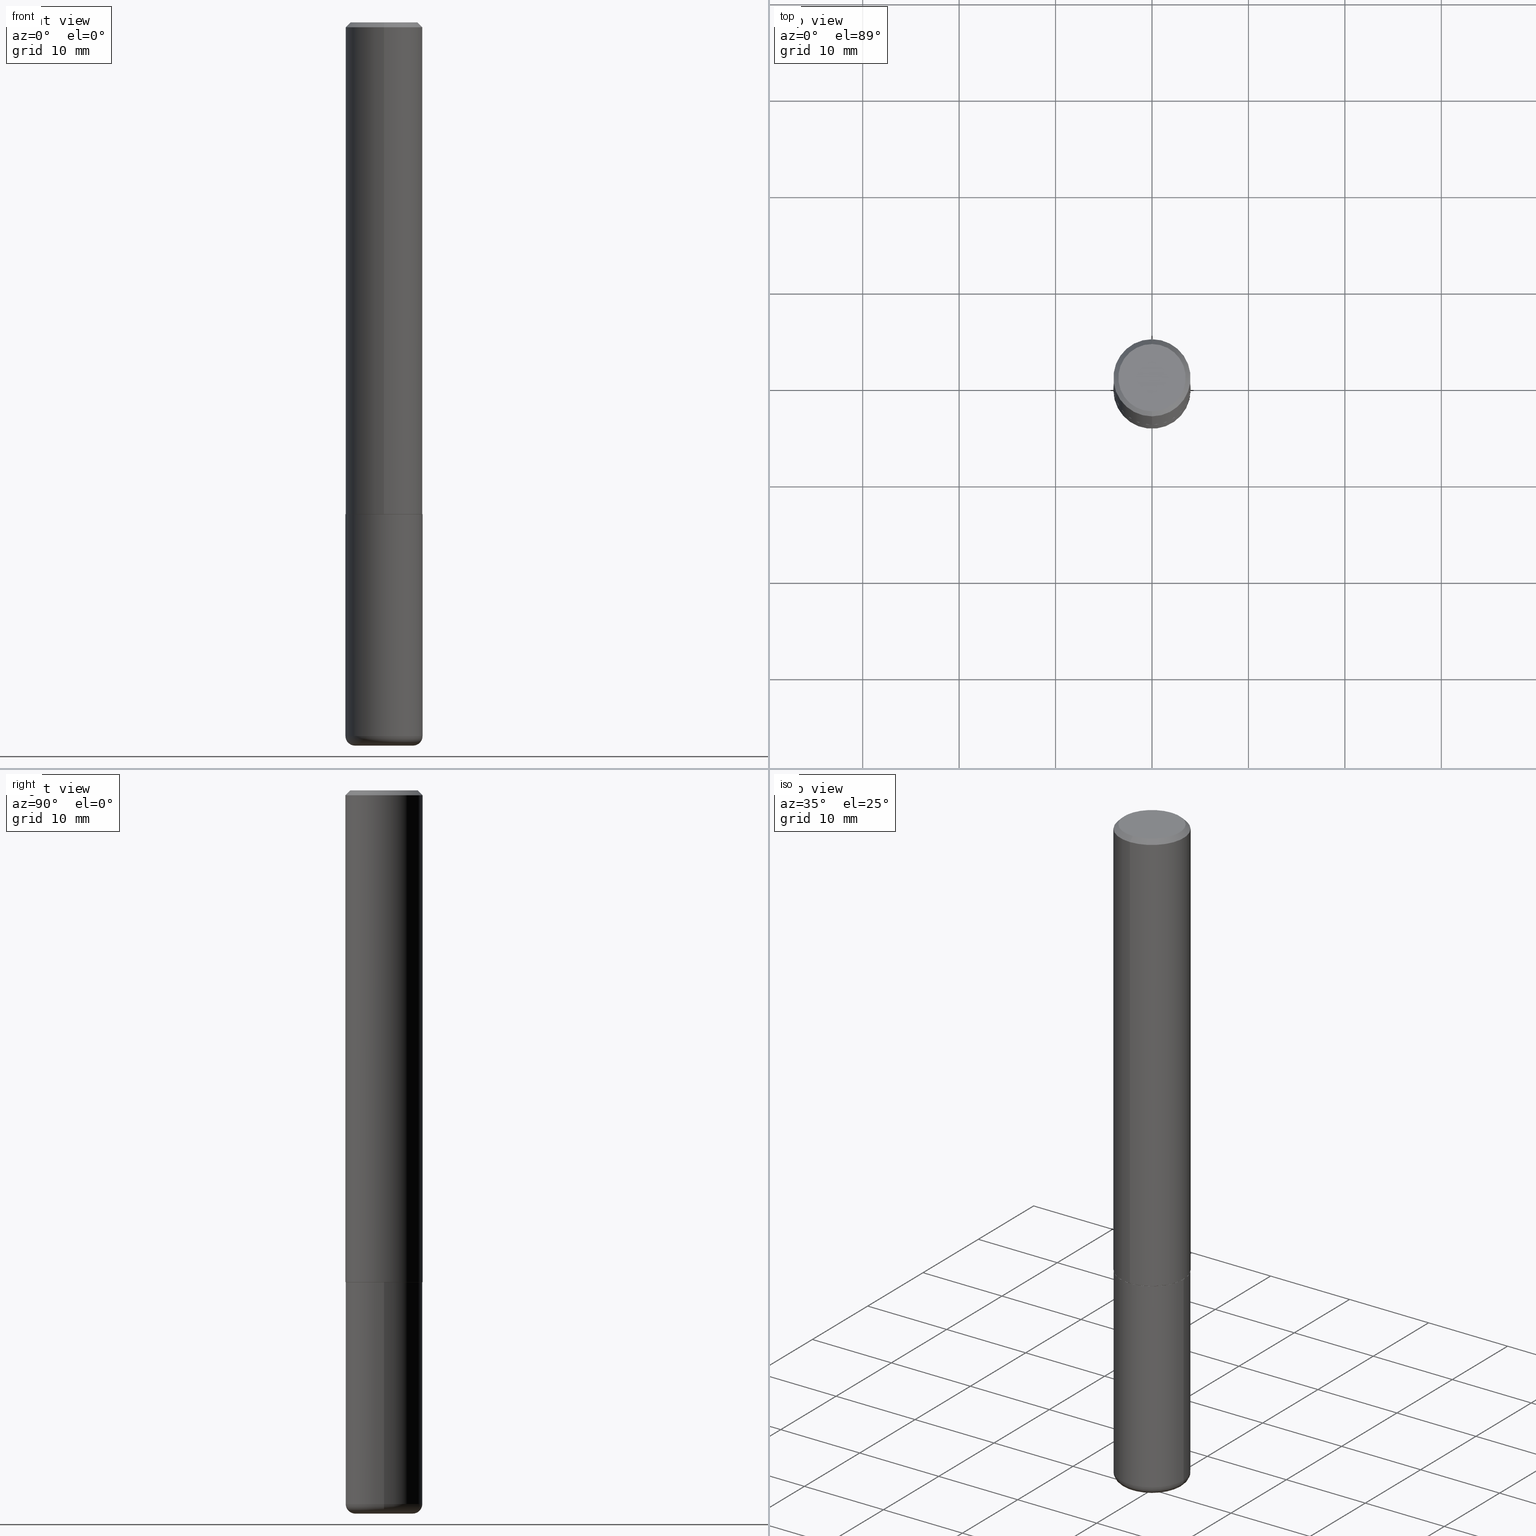
[diagram: canonical four-view strip — front | top / right | iso, engineering-drawing reading convention]
A machine part, canonical four-view strip (front | top / right | iso — engineering-drawing reading convention). The complete STEP part file that produces these views, byte-faithful:
ISO-10303-21;
HEADER;
FILE_DESCRIPTION (( 'STEP AP203' ),
    '1' );
FILE_NAME ('47502.STEP',
    '2024-03-06T04:20:01',
    ( '' ),
    ( '' ),
    'SwSTEP 2.0',
    'SolidWorks 2023',
    '' );
FILE_SCHEMA (( 'CONFIG_CONTROL_DESIGN' ));
ENDSEC;

DATA;
#1 = AXIS2_PLACEMENT_3D ( 'NONE', #279, #302, #403 ) ;
#2 = AXIS2_PLACEMENT_3D ( 'NONE', #190, #261, #220 ) ;
#3 = AXIS2_PLACEMENT_3D ( 'NONE', #163, #100, #332 ) ;
#4 = CARTESIAN_POINT ( 'NONE',  ( 0.1575000000000000011, -1.099816621735586889E-15, 7.679978421878598033E-30 ) ) ;
#5 = VERTEX_POINT ( 'NONE', #36 ) ;
#6 = CARTESIAN_POINT ( 'NONE',  ( -0.1575000000000000289, -9.052976923763463288E-15, -2.913399999999999768 ) ) ;
#7 = VERTEX_POINT ( 'NONE', #374 ) ;
#8 = CARTESIAN_POINT ( 'NONE',  ( -1.011923454671299856E-15, -0.1374999999999997335, 7.578230169990059811E-16 ) ) ;
#9 = LENGTH_MEASURE_WITH_UNIT ( LENGTH_MEASURE( 0.02539999999999999897 ), #301 );
#10 = ADVANCED_FACE ( 'NONE', ( #182 ), #106, .T. ) ;
#11 = LINE ( 'NONE', #173, #291 ) ;
#12 = VERTEX_POINT ( 'NONE', #414 ) ;
#13 =( NAMED_UNIT ( * ) PLANE_ANGLE_UNIT ( ) SI_UNIT ( $, .RADIAN. ) );
#14 = AXIS2_PLACEMENT_3D ( 'NONE', #136, #370, #327 ) ;
#15 = APPROVAL_PERSON_ORGANIZATION ( #308, #184, #240 ) ;
#16 = CARTESIAN_POINT ( 'NONE',  ( 4.910256815939135309E-29, -7.010545380263150922E-15, -2.007899999999999796 ) ) ;
#17 = PLANE ( 'NONE',  #154 ) ;
#18 = DIRECTION ( 'NONE',  ( 1.000000000000000000, 0.000000000000000000, 0.000000000000000000 ) ) ;
#19 = AXIS2_PLACEMENT_3D ( 'NONE', #299, #77, #366 ) ;
#20 = CARTESIAN_POINT ( 'NONE',  ( 4.910256815939135309E-29, -7.010545380263150922E-15, -2.007899999999999796 ) ) ;
#21 = DATE_AND_TIME ( #147, #381 ) ;
#22 = DIRECTION ( 'NONE',  ( 2.444729828315544280E-29, -3.492539597212409932E-15, -1.000000000000000000 ) ) ;
#23 = APPLICATION_PROTOCOL_DEFINITION ( 'international standard', 'config_control_design', 1994, #338 ) ;
#24 = ADVANCED_FACE ( 'NONE', ( #68 ), #290, .T. ) ;
#25 = EDGE_CURVE ( 'NONE', #12, #211, #407, .T. ) ;
#26 = CARTESIAN_POINT ( 'NONE',  ( 0.000000000000000000, 0.000000000000000000, 0.000000000000000000 ) ) ;
#27 = ADVANCED_FACE ( 'NONE', ( #54 ), #309, .T. ) ;
#28 = VECTOR ( 'NONE', #339, 39.37007874015748143 ) ;
#29 = DIRECTION ( 'NONE',  ( -2.444729828315544280E-29, 3.492539597212409932E-15, 1.000000000000000000 ) ) ;
#30 = VECTOR ( 'NONE', #245, 39.37007874015748143 ) ;
#31 = ADVANCED_FACE ( 'NONE', ( #416 ), #227, .T. ) ;
#32 = CARTESIAN_POINT ( 'NONE',  ( -0.1575000000000000011, -7.472208747602227514E-15, -2.007899999999999796 ) ) ;
#33 = AXIS2_PLACEMENT_3D ( 'NONE', #205, #337, #254 ) ;
#34 = EDGE_LOOP ( 'NONE', ( #179, #127, #293, #83 ) ) ;
#35 = ORIENTED_EDGE ( 'NONE', *, *, #413, .T. ) ;
#36 = CARTESIAN_POINT ( 'NONE',  ( 1.115552095143406798E-15, 0.1564999999999929781, -2.007900000000000240 ) ) ;
#37 = ORIENTED_EDGE ( 'NONE', *, *, #248, .F. ) ;
#38 = CARTESIAN_POINT ( 'NONE',  ( 7.220980290903470182E-29, -1.030964609733603853E-14, -2.952799999999999869 ) ) ;
#39 = AXIS2_PLACEMENT_3D ( 'NONE', #38, #411, #222 ) ;
#40 = LOCAL_TIME ( 23, 20, 1.000000000000000000, #81 ) ;
#41 = EDGE_LOOP ( 'NONE', ( #289, #231, #74, #318 ) ) ;
#42 = CARTESIAN_POINT ( 'NONE',  ( 9.601573681818597005E-16, 0.1374999999999997335, -3.414247834255550788E-16 ) ) ;
#43 = ORIENTED_EDGE ( 'NONE', *, *, #130, .T. ) ;
#44 = DIRECTION ( 'NONE',  ( -2.444729828315544280E-29, 3.492539597212409932E-15, 1.000000000000000000 ) ) ;
#45 = EDGE_LOOP ( 'NONE', ( #192, #264, #96, #70 ) ) ;
#46 = DIRECTION ( 'NONE',  ( -6.982962677686264344E-15, -1.000000000000000000, 3.496114991891764787E-15 ) ) ;
#47 = FACE_OUTER_BOUND ( 'NONE', #160, .T. ) ;
#48 = AXIS2_PLACEMENT_3D ( 'NONE', #111, #22, #80 ) ;
#49 = CIRCLE ( 'NONE', #159, 0.1575000000000002232 ) ;
#50 = CARTESIAN_POINT ( 'NONE',  ( 1.119104808822183439E-15, 0.1574999999999932287, -2.006899999999999906 ) ) ;
#51 = DIRECTION ( 'NONE',  ( 1.000000000000000000, -6.982962677686265922E-15, 4.876176775795935232E-29 ) ) ;
#52 = CARTESIAN_POINT ( 'NONE',  ( 4.889459656631096617E-31, -6.985079194424830218E-17, -0.02000000000000003511 ) ) ;
#53 = CIRCLE ( 'NONE', #101, 0.1575000000000000011 ) ;
#54 = FACE_OUTER_BOUND ( 'NONE', #390, .T. ) ;
#55 = PERSON_AND_ORGANIZATION_ROLE ( 'design_owner' ) ;
#56 = PERSON_AND_ORGANIZATION_ROLE ( 'classification_officer' ) ;
#57 = DIRECTION ( 'NONE',  ( -2.444729828315544280E-29, 3.492539597212409932E-15, 1.000000000000000000 ) ) ;
#58 = LINE ( 'NONE', #256, #28 ) ;
#59 = EDGE_CURVE ( 'NONE', #5, #233, #133, .T. ) ;
#60 = APPROVAL_DATE_TIME ( #151, #336 ) ;
#61 = DATE_AND_TIME ( #371, #365 ) ;
#62 = VERTEX_POINT ( 'NONE', #6 ) ;
#63 = DIRECTION ( 'NONE',  ( 1.000000000000000000, -6.982962677686267499E-15, 0.000000000000000000 ) ) ;
#64 = TOROIDAL_SURFACE ( 'NONE', #297, 0.1180999999999999966, 0.03940000000000005997 ) ;
#65 = ORIENTED_EDGE ( 'NONE', *, *, #399, .T. ) ;
#66 = CC_DESIGN_PERSON_AND_ORGANIZATION_ASSIGNMENT ( #377, #252, ( #285 ) ) ;
#67 = ORIENTED_EDGE ( 'NONE', *, *, #286, .F. ) ;
#68 = FACE_OUTER_BOUND ( 'NONE', #199, .T. ) ;
#69 = EDGE_CURVE ( 'NONE', #7, #99, #378, .T. ) ;
#70 = ORIENTED_EDGE ( 'NONE', *, *, #130, .F. ) ;
#71 = APPLICATION_CONTEXT ( 'configuration controlled 3d designs of mechanical parts and assemblies' ) ;
#72 = CARTESIAN_POINT ( 'NONE',  ( 1.099816621735587480E-15, 0.1574999999999999456, -0.02000000000000058328 ) ) ;
#73 = AXIS2_PLACEMENT_3D ( 'NONE', #234, #274, #128 ) ;
#74 = ORIENTED_EDGE ( 'NONE', *, *, #248, .T. ) ;
#75 = DIRECTION ( 'NONE',  ( -2.445468806185136597E-29, 3.491481338843145583E-15, 1.000000000000000000 ) ) ;
#76 = DIRECTION ( 'NONE',  ( -6.982962677686265922E-15, -1.000000000000000000, 3.469013325287948560E-15 ) ) ;
#77 = DIRECTION ( 'NONE',  ( 7.105427357601001859E-15, 1.000000000000000000, -3.491481338843145583E-15 ) ) ;
#78 = CARTESIAN_POINT ( 'NONE',  ( 0.000000000000000000, 0.000000000000000000, 0.000000000000000000 ) ) ;
#79 = CC_DESIGN_PERSON_AND_ORGANIZATION_ASSIGNMENT ( #114, #349, ( #137 ) ) ;
#80 = DIRECTION ( 'NONE',  ( 6.982962677686264344E-15, 1.000000000000000000, -3.496114991891764787E-15 ) ) ;
#81 = COORDINATED_UNIVERSAL_TIME_OFFSET ( 5, 0, .BEHIND. ) ;
#82 = DIRECTION ( 'NONE',  ( -2.444729828315544280E-29, 3.492539597212409932E-15, 1.000000000000000000 ) ) ;
#83 = ORIENTED_EDGE ( 'NONE', *, *, #281, .F. ) ;
#84 = EDGE_CURVE ( 'NONE', #204, #153, #148, .T. ) ;
#85 = CIRCLE ( 'NONE', #388, 0.03940000000000005997 ) ;
#86 = SECURITY_CLASSIFICATION_LEVEL ( 'unclassified' ) ;
#87 = ADVANCED_FACE ( 'NONE', ( #113 ), #141, .T. ) ;
#88 = CARTESIAN_POINT ( 'NONE',  ( 4.908773022274780866E-29, -7.012670257242796607E-15, -2.007899999999999796 ) ) ;
#89 = FACE_OUTER_BOUND ( 'NONE', #135, .T. ) ;
#90 = CC_DESIGN_SECURITY_CLASSIFICATION ( #208, ( #285 ) ) ;
#91 = ORIENTED_EDGE ( 'NONE', *, *, #59, .F. ) ;
#92 = DIRECTION ( 'NONE',  ( 1.000000000000000000, -6.982962677686273021E-15, 0.000000000000000000 ) ) ;
#93 = VERTEX_POINT ( 'NONE', #251 ) ;
#94 = ADVANCED_FACE ( 'NONE', ( #346 ), #180, .T. ) ;
#95 = ORIENTED_EDGE ( 'NONE', *, *, #161, .F. ) ;
#96 = ORIENTED_EDGE ( 'NONE', *, *, #140, .F. ) ;
#97 = EDGE_CURVE ( 'NONE', #246, #153, #58, .T. ) ;
#98 = ORIENTED_EDGE ( 'NONE', *, *, #221, .T. ) ;
#99 = VERTEX_POINT ( 'NONE', #176 ) ;
#100 = DIRECTION ( 'NONE',  ( -2.445468806185136597E-29, 3.491481338843145583E-15, 1.000000000000000000 ) ) ;
#101 = AXIS2_PLACEMENT_3D ( 'NONE', #16, #276, #103 ) ;
#102 = CC_DESIGN_APPROVAL ( #336, ( #137 ) ) ;
#103 = DIRECTION ( 'NONE',  ( 1.000000000000000000, -6.982962677686268288E-15, 0.000000000000000000 ) ) ;
#104 = DIRECTION ( 'NONE',  ( 2.444729828315543719E-29, -3.492539597212410327E-15, -1.000000000000000000 ) ) ;
#105 = LOCAL_TIME ( 23, 20, 1.000000000000000000, #181 ) ;
#106 = CYLINDRICAL_SURFACE ( 'NONE', #1, 0.1575000000000000011 ) ;
#107 = DIRECTION ( 'NONE',  ( -2.445468806185136597E-29, 3.491481338843145583E-15, 1.000000000000000000 ) ) ;
#108 = DATE_TIME_ROLE ( 'creation_date' ) ;
#109 = EDGE_CURVE ( 'NONE', #394, #246, #267, .T. ) ;
#110 = APPROVAL_DATE_TIME ( #340, #187 ) ;
#111 = CARTESIAN_POINT ( 'NONE',  ( 4.889459656631096617E-31, -6.985079194424830218E-17, -0.02000000000000003511 ) ) ;
#112 = PERSON_AND_ORGANIZATION ( #175, #397 ) ;
#113 = FACE_OUTER_BOUND ( 'NONE', #157, .T. ) ;
#114 = PERSON_AND_ORGANIZATION ( #175, #397 ) ;
#115 = DIRECTION ( 'NONE',  ( 5.024295867788490741E-15, 0.7071067811866103003, 0.7071067811864847341 ) ) ;
#116 = DIRECTION ( 'NONE',  ( -6.982962677686265922E-15, -1.000000000000000000, 3.491179544618866730E-15 ) ) ;
#117 = EDGE_CURVE ( 'NONE', #93, #124, #242, .T. ) ;
#118 = APPROVAL_DATE_TIME ( #61, #184 ) ;
#119 = VECTOR ( 'NONE', #271, 39.37007874015748143 ) ;
#120 = APPROVAL_PERSON_ORGANIZATION ( #380, #336, #213 ) ;
#121 = CARTESIAN_POINT ( 'NONE',  ( 0.1180999999999999966, -1.099676962482036915E-14, -2.913399999999999768 ) ) ;
#122 = ORIENTED_EDGE ( 'NONE', *, *, #84, .T. ) ;
#123 = ADVANCED_FACE ( 'NONE', ( #357 ), #373, .T. ) ;
#124 = VERTEX_POINT ( 'NONE', #32 ) ;
#125 = ORIENTED_EDGE ( 'NONE', *, *, #257, .T. ) ;
#126 = CARTESIAN_POINT ( 'NONE',  ( 7.220980290903470182E-29, -1.030964609733603853E-14, -2.952799999999999869 ) ) ;
#127 = ORIENTED_EDGE ( 'NONE', *, *, #286, .T. ) ;
#128 = DIRECTION ( 'NONE',  ( -6.982962677686265922E-15, -1.000000000000000000, 3.491179544618866730E-15 ) ) ;
#129 = LINE ( 'NONE', #237, #119 ) ;
#130 = EDGE_CURVE ( 'NONE', #7, #368, #85, .T. ) ;
#131 = DIRECTION ( 'NONE',  ( -2.444729828315543719E-29, 3.492539597212410327E-15, 1.000000000000000000 ) ) ;
#132 = APPLICATION_PROTOCOL_DEFINITION ( 'international standard', 'config_control_design', 1994, #71 ) ;
#133 = CIRCLE ( 'NONE', #384, 0.1565000000000000002 ) ;
#134 = CARTESIAN_POINT ( 'NONE',  ( -6.786541213832790321E-45, 9.695248793097192351E-31, 2.775988223823005522E-16 ) ) ;
#135 = EDGE_LOOP ( 'NONE', ( #348, #358, #43, #67 ) ) ;
#136 = CARTESIAN_POINT ( 'NONE',  ( 4.908773022274780866E-29, -7.012670257242796607E-15, -2.007899999999999796 ) ) ;
#137 = PRODUCT_DEFINITION ( 'UNKNOWN', '', #285, #263 ) ;
#138 = DATE_TIME_ROLE ( 'classification_date' ) ;
#139 = LINE ( 'NONE', #228, #215 ) ;
#140 = EDGE_CURVE ( 'NONE', #368, #62, #312, .T. ) ;
#141 = CONICAL_SURFACE ( 'NONE', #48, 0.1575000000000000289, 0.7853981633974479459 ) ;
#142 = CIRCLE ( 'NONE', #3, 0.1180999999999999966 ) ;
#143 = CARTESIAN_POINT ( 'NONE',  ( 4.889459656631096617E-31, -6.985079194424830218E-17, -0.02000000000000003511 ) ) ;
#144 = DIRECTION ( 'NONE',  ( -2.444729828315544280E-29, 3.492539597212409932E-15, 1.000000000000000000 ) ) ;
#145 = CARTESIAN_POINT ( 'NONE',  ( 0.000000000000000000, 0.000000000000000000, 0.000000000000000000 ) ) ;
#146 = DIMENSIONAL_EXPONENTS ( 1.000000000000000000, 0.000000000000000000, 0.000000000000000000, 0.000000000000000000, 0.000000000000000000, 0.000000000000000000, 0.000000000000000000 ) ;
#147 = CALENDAR_DATE ( 2024, 5, 3 ) ;
#148 = CIRCLE ( 'NONE', #275, 0.1575000000000000289 ) ;
#149 = DIRECTION ( 'NONE',  ( -2.445468806185136597E-29, 3.491481338843145583E-15, 1.000000000000000000 ) ) ;
#150 = DIRECTION ( 'NONE',  ( 1.000000000000000000, -6.982962677686268288E-15, 0.000000000000000000 ) ) ;
#151 = DATE_AND_TIME ( #404, #178 ) ;
#152 = COORDINATED_UNIVERSAL_TIME_OFFSET ( 5, 0, .BEHIND. ) ;
#153 = VERTEX_POINT ( 'NONE', #232 ) ;
#154 = AXIS2_PLACEMENT_3D ( 'NONE', #42, #104, #300 ) ;
#155 = CALENDAR_DATE ( 2024, 5, 3 ) ;
#156 = EDGE_CURVE ( 'NONE', #211, #204, #11, .T. ) ;
#157 = EDGE_LOOP ( 'NONE', ( #307, #288, #418, #122 ) ) ;
#158 = ORIENTED_EDGE ( 'NONE', *, *, #399, .F. ) ;
#159 = AXIS2_PLACEMENT_3D ( 'NONE', #298, #44, #76 ) ;
#160 = EDGE_LOOP ( 'NONE', ( #325, #314, #125, #226 ) ) ;
#161 = EDGE_CURVE ( 'NONE', #394, #204, #270, .T. ) ;
#162 = CC_DESIGN_PERSON_AND_ORGANIZATION_ASSIGNMENT ( #305, #55, ( #323 ) ) ;
#163 = CARTESIAN_POINT ( 'NONE',  ( 7.220980290903470182E-29, -1.030964609733603853E-14, -2.952799999999999869 ) ) ;
#164 = LINE ( 'NONE', #347, #306 ) ;
#165 = ORIENTED_EDGE ( 'NONE', *, *, #367, .F. ) ;
#166 = DIRECTION ( 'NONE',  ( -2.445468806185136597E-29, 3.491481338843145583E-15, 1.000000000000000000 ) ) ;
#167 = DIRECTION ( 'NONE',  ( -4.937700262164969294E-15, -0.7071067811866054154, 0.7071067811864896191 ) ) ;
#168 = AXIS2_PLACEMENT_3D ( 'NONE', #386, #216, #341 ) ;
#169 = ADVANCED_FACE ( 'NONE', ( #170 ), #330, .F. ) ;
#170 = FACE_OUTER_BOUND ( 'NONE', #262, .T. ) ;
#171 = COORDINATED_UNIVERSAL_TIME_OFFSET ( 5, 0, .BEHIND. ) ;
#172 = EDGE_CURVE ( 'NONE', #99, #62, #200, .T. ) ;
#173 = CARTESIAN_POINT ( 'NONE',  ( 1.119104808822158392E-15, 0.1575000000000001399, -5.500749865609550376E-16 ) ) ;
#174 = DIRECTION ( 'NONE',  ( -2.444729828315544280E-29, 3.492539597212409932E-15, 1.000000000000000000 ) ) ;
#175 = PERSON ( 'UNSPECIFIED', 'UNSPECIFIED', 'UNSPECIFIED', ('UNSPECIFIED'), ('UNSPECIFIED'), ('UNSPECIFIED') ) ;
#176 = CARTESIAN_POINT ( 'NONE',  ( -0.1180999999999999966, -9.261736025083411415E-15, -2.952799999999999869 ) ) ;
#177 = CONICAL_SURFACE ( 'NONE', #14, 0.1565000000000000002, 0.7853981633975336552 ) ;
#178 = LOCAL_TIME ( 23, 20, 1.000000000000000000, #152 ) ;
#179 = ORIENTED_EDGE ( 'NONE', *, *, #322, .F. ) ;
#180 = CYLINDRICAL_SURFACE ( 'NONE', #284, 0.1575000000000001399 ) ;
#181 = COORDINATED_UNIVERSAL_TIME_OFFSET ( 5, 0, .BEHIND. ) ;
#182 = FACE_OUTER_BOUND ( 'NONE', #34, .T. ) ;
#183 = CARTESIAN_POINT ( 'NONE',  ( 7.124628819939776708E-29, -1.017208173258561931E-14, -2.913399999999999768 ) ) ;
#184 = APPROVAL ( #406, 'UNSPECIFIED' ) ;
#185 = AXIS2_PLACEMENT_3D ( 'NONE', #303, #29, #255 ) ;
#186 = AXIS2_PLACEMENT_3D ( 'NONE', #194, #166, #400 ) ;
#187 = APPROVAL ( #247, 'UNSPECIFIED' ) ;
#188 = AXIS2_PLACEMENT_3D ( 'NONE', #218, #144, #328 ) ;
#189 = FACE_OUTER_BOUND ( 'NONE', #201, .T. ) ;
#190 = CARTESIAN_POINT ( 'NONE',  ( 7.124628819939776708E-29, -1.017208173258561931E-14, -2.913399999999999768 ) ) ;
#191 = DIRECTION ( 'NONE',  ( -2.445468806185136597E-29, 3.491481338843145583E-15, 1.000000000000000000 ) ) ;
#192 = ORIENTED_EDGE ( 'NONE', *, *, #69, .T. ) ;
#193 = AXIS2_PLACEMENT_3D ( 'NONE', #126, #191, #92 ) ;
#194 = CARTESIAN_POINT ( 'NONE',  ( 7.124628819939776708E-29, -1.017208173258561931E-14, -2.913399999999999768 ) ) ;
#195 = ORIENTED_EDGE ( 'NONE', *, *, #257, .F. ) ;
#196 = EDGE_LOOP ( 'NONE', ( #310, #35 ) ) ;
#197 = PRODUCT_RELATED_PRODUCT_CATEGORY ( 'detail', '', ( #323 ) ) ;
#198 = ADVANCED_BREP_SHAPE_REPRESENTATION ( '47502', ( #239, #383, #244 ), #385 ) ;
#199 = EDGE_LOOP ( 'NONE', ( #345, #165 ) ) ;
#200 = CIRCLE ( 'NONE', #19, 0.03940000000000005997 ) ;
#201 = EDGE_LOOP ( 'NONE', ( #98, #225, #269, #195 ) ) ;
#202 = CC_DESIGN_PERSON_AND_ORGANIZATION_ASSIGNMENT ( #344, #56, ( #208 ) ) ;
#203 = LINE ( 'NONE', #331, #235 ) ;
#204 = VERTEX_POINT ( 'NONE', #72 ) ;
#205 = CARTESIAN_POINT ( 'NONE',  ( 4.910256815939135309E-29, -7.010545380263150922E-15, -2.007899999999999796 ) ) ;
#206 =( NAMED_UNIT ( * ) SI_UNIT ( $, .STERADIAN. ) SOLID_ANGLE_UNIT ( ) );
#207 = CLOSED_SHELL ( 'NONE', ( #360, #27, #123, #87, #94, #230, #169, #223 ) ) ;
#208 = SECURITY_CLASSIFICATION ( '', '', #86 ) ;
#209 = PLANE ( 'NONE',  #33 ) ;
#210 = DIRECTION ( 'NONE',  ( 0.000000000000000000, 0.000000000000000000, 1.000000000000000000 ) ) ;
#211 = VERTEX_POINT ( 'NONE', #50 ) ;
#212 = PERSON_AND_ORGANIZATION ( #175, #397 ) ;
#213 = APPROVAL_ROLE ( '' ) ;
#214 = AXIS2_PLACEMENT_3D ( 'NONE', #236, #75, #51 ) ;
#215 = VECTOR ( 'NONE', #115, 39.37007874015748143 ) ;
#216 = DIRECTION ( 'NONE',  ( -2.444729828315544280E-29, 3.492539597212409932E-15, 1.000000000000000000 ) ) ;
#217 = DIRECTION ( 'NONE',  ( -6.982962677686265133E-15, -1.000000000000000000, 3.492539597212409932E-15 ) ) ;
#218 = CARTESIAN_POINT ( 'NONE',  ( 4.908773022274780866E-29, -7.012670257242796607E-15, -2.007899999999999796 ) ) ;
#219 = APPROVAL_STATUS ( 'not_yet_approved' ) ;
#220 = DIRECTION ( 'NONE',  ( 1.000000000000000000, -6.982962677686271444E-15, 4.883557194083114583E-29 ) ) ;
#221 = EDGE_CURVE ( 'NONE', #233, #5, #259, .T. ) ;
#222 = DIRECTION ( 'NONE',  ( -1.000000000000000000, 6.982962677686265922E-15, -4.876176775795935793E-29 ) ) ;
#223 = ADVANCED_FACE ( 'NONE', ( #362 ), #17, .F. ) ;
#224 = LINE ( 'NONE', #4, #30 ) ;
#225 = ORIENTED_EDGE ( 'NONE', *, *, #304, .T. ) ;
#226 = ORIENTED_EDGE ( 'NONE', *, *, #412, .F. ) ;
#227 = TOROIDAL_SURFACE ( 'NONE', #2, 0.1180999999999999966, 0.03940000000000005997 ) ;
#228 = CARTESIAN_POINT ( 'NONE',  ( 1.111999381464605505E-15, 0.1564999999999929781, -2.007900000000000240 ) ) ;
#229 = ORIENTED_EDGE ( 'NONE', *, *, #281, .T. ) ;
#230 = ADVANCED_FACE ( 'NONE', ( #47 ), #177, .T. ) ;
#231 = ORIENTED_EDGE ( 'NONE', *, *, #412, .T. ) ;
#232 = CARTESIAN_POINT ( 'NONE',  ( -1.080528434649015779E-15, -0.1575000000000000844, -0.01999999999999948347 ) ) ;
#233 = VERTEX_POINT ( 'NONE', #398 ) ;
#234 = CARTESIAN_POINT ( 'NONE',  ( 4.908773022274780866E-29, -7.012670257242796607E-15, -2.007899999999999796 ) ) ;
#235 = VECTOR ( 'NONE', #167, 39.37007874015748143 ) ;
#236 = CARTESIAN_POINT ( 'NONE',  ( 0.000000000000000000, 0.000000000000000000, 0.000000000000000000 ) ) ;
#237 = CARTESIAN_POINT ( 'NONE',  ( -1.099816621735587677E-15, -0.1575000000000001399, 5.500749865609550376E-16 ) ) ;
#238 = DIRECTION ( 'NONE',  ( -6.982962677686265922E-15, -1.000000000000000000, 3.492539597212410327E-15 ) ) ;
#239 = MANIFOLD_SOLID_BREP ( 'Body-Move/Copy2[1]', #355 ) ;
#240 = APPROVAL_ROLE ( '' ) ;
#241 = CYLINDRICAL_SURFACE ( 'NONE', #214, 0.1575000000000000011 ) ;
#242 = CIRCLE ( 'NONE', #334, 0.1575000000000000011 ) ;
#243 = AXIS2_PLACEMENT_3D ( 'NONE', #134, #174, #238 ) ;
#244 = AXIS2_PLACEMENT_3D ( 'NONE', #78, #210, #18 ) ;
#245 = DIRECTION ( 'NONE',  ( -2.445468806185136877E-29, 3.491481338843145188E-15, 1.000000000000000000 ) ) ;
#246 = VERTEX_POINT ( 'NONE', #8 ) ;
#247 = APPROVAL_STATUS ( 'not_yet_approved' ) ;
#248 = EDGE_CURVE ( 'NONE', #12, #153, #129, .T. ) ;
#249 = APPROVAL_ROLE ( '' ) ;
#250 = ADVANCED_FACE ( 'NONE', ( #395 ), #241, .T. ) ;
#251 = CARTESIAN_POINT ( 'NONE',  ( 0.1575000000000000011, -8.110362001998737613E-15, -2.007899999999999796 ) ) ;
#252 = PERSON_AND_ORGANIZATION_ROLE ( 'design_supplier' ) ;
#253 = CIRCLE ( 'NONE', #317, 0.1575000000000000011 ) ;
#254 = DIRECTION ( 'NONE',  ( -1.000000000000000000, 6.982962677686265922E-15, -4.876176775795935793E-29 ) ) ;
#255 = DIRECTION ( 'NONE',  ( -6.982962677686265922E-15, -1.000000000000000000, 3.492539597212410327E-15 ) ) ;
#256 = CARTESIAN_POINT ( 'NONE',  ( -1.080528434649015779E-15, -0.1575000000000000844, -0.01999999999999948347 ) ) ;
#257 = EDGE_CURVE ( 'NONE', #233, #12, #203, .T. ) ;
#258 = DIRECTION ( 'NONE',  ( 6.982962677686264344E-15, 1.000000000000000000, -3.496114991891764787E-15 ) ) ;
#259 = CIRCLE ( 'NONE', #73, 0.1565000000000000002 ) ;
#260 = CONICAL_SURFACE ( 'NONE', #188, 0.1565000000000000002, 0.7853981633975336552 ) ;
#261 = DIRECTION ( 'NONE',  ( -2.445468806185136597E-29, 3.491481338843145583E-15, 1.000000000000000000 ) ) ;
#262 = EDGE_LOOP ( 'NONE', ( #294, #91 ) ) ;
#263 = DESIGN_CONTEXT ( 'detailed design', #338, 'design' ) ;
#264 = ORIENTED_EDGE ( 'NONE', *, *, #172, .T. ) ;
#265 = PRODUCT_DEFINITION_SHAPE ( 'NONE', 'NONE',  #137 ) ;
#266 = ORIENTED_EDGE ( 'NONE', *, *, #117, .T. ) ;
#267 = CIRCLE ( 'NONE', #185, 0.1374999999999997335 ) ;
#268 = APPROVAL_PERSON_ORGANIZATION ( #212, #187, #249 ) ;
#269 = ORIENTED_EDGE ( 'NONE', *, *, #25, .F. ) ;
#270 = LINE ( 'NONE', #278, #280 ) ;
#271 = DIRECTION ( 'NONE',  ( -2.444729828315544280E-29, 3.492539597212410327E-15, 1.000000000000000000 ) ) ;
#272 = CC_DESIGN_PERSON_AND_ORGANIZATION_ASSIGNMENT ( #112, #342, ( #285 ) ) ;
#273 = CARTESIAN_POINT ( 'NONE',  ( 1.029986994958723590E-15, 0.1374999999999997335, -2.026253722344048274E-16 ) ) ;
#274 = DIRECTION ( 'NONE',  ( -2.444729828315544280E-29, 3.492539597212409932E-15, 1.000000000000000000 ) ) ;
#275 = AXIS2_PLACEMENT_3D ( 'NONE', #143, #311, #376 ) ;
#276 = DIRECTION ( 'NONE',  ( -2.445468806185136597E-29, 3.491481338843145583E-15, 1.000000000000000000 ) ) ;
#277 =( CONVERSION_BASED_UNIT ( 'INCH', #9 ) LENGTH_UNIT ( ) NAMED_UNIT ( #146 ) );
#278 = CARTESIAN_POINT ( 'NONE',  ( 1.099816621735587480E-15, 0.1574999999999999456, -0.02000000000000058328 ) ) ;
#279 = CARTESIAN_POINT ( 'NONE',  ( 0.000000000000000000, 0.000000000000000000, 0.000000000000000000 ) ) ;
#280 = VECTOR ( 'NONE', #333, 39.37007874015748143 ) ;
#281 = EDGE_CURVE ( 'NONE', #124, #93, #53, .T. ) ;
#282 = ORIENTED_EDGE ( 'NONE', *, *, #97, .T. ) ;
#283 = ADVANCED_FACE ( 'NONE', ( #372 ), #209, .F. ) ;
#284 = AXIS2_PLACEMENT_3D ( 'NONE', #145, #379, #217 ) ;
#285 = PRODUCT_DEFINITION_FORMATION_WITH_SPECIFIED_SOURCE ( 'ANY', '', #323, .NOT_KNOWN. ) ;
#286 = EDGE_CURVE ( 'NONE', #62, #368, #253, .T. ) ;
#287 = ADVANCED_FACE ( 'NONE', ( #89 ), #64, .T. ) ;
#288 = ORIENTED_EDGE ( 'NONE', *, *, #109, .F. ) ;
#289 = ORIENTED_EDGE ( 'NONE', *, *, #156, .F. ) ;
#290 = PLANE ( 'NONE',  #39 ) ;
#291 = VECTOR ( 'NONE', #392, 39.37007874015748143 ) ;
#292 = ORIENTED_EDGE ( 'NONE', *, *, #413, .F. ) ;
#293 = ORIENTED_EDGE ( 'NONE', *, *, #316, .T. ) ;
#294 = ORIENTED_EDGE ( 'NONE', *, *, #221, .F. ) ;
#295 = DIRECTION ( 'NONE',  ( -6.982962677686265922E-15, -1.000000000000000000, 3.492539597212410327E-15 ) ) ;
#296 = CARTESIAN_POINT ( 'NONE',  ( 4.908773022274780866E-29, -7.012670257242796607E-15, -2.007899999999999796 ) ) ;
#297 = AXIS2_PLACEMENT_3D ( 'NONE', #401, #107, #389 ) ;
#298 = CARTESIAN_POINT ( 'NONE',  ( 4.906328292446464760E-29, -7.009177717645583542E-15, -2.006899999999999462 ) ) ;
#299 = CARTESIAN_POINT ( 'NONE',  ( -0.1180999999999999966, -9.332930761652941905E-15, -2.913399999999999768 ) ) ;
#300 = DIRECTION ( 'NONE',  ( 6.982962677686265922E-15, 1.000000000000000000, -3.492539597212410327E-15 ) ) ;
#301 =( LENGTH_UNIT ( ) NAMED_UNIT ( * ) SI_UNIT ( $, .METRE. ) );
#302 = DIRECTION ( 'NONE',  ( -2.445468806185136597E-29, 3.491481338843145583E-15, 1.000000000000000000 ) ) ;
#303 = CARTESIAN_POINT ( 'NONE',  ( -6.786541213832790321E-45, 9.695248793097192351E-31, 2.775988223823005522E-16 ) ) ;
#304 = EDGE_CURVE ( 'NONE', #5, #211, #139, .T. ) ;
#305 = PERSON_AND_ORGANIZATION ( #175, #397 ) ;
#306 = VECTOR ( 'NONE', #350, 39.37007874015748143 ) ;
#307 = ORIENTED_EDGE ( 'NONE', *, *, #97, .F. ) ;
#308 = PERSON_AND_ORGANIZATION ( #175, #397 ) ;
#309 = CYLINDRICAL_SURFACE ( 'NONE', #363, 0.1575000000000001399 ) ;
#310 = ORIENTED_EDGE ( 'NONE', *, *, #109, .T. ) ;
#311 = DIRECTION ( 'NONE',  ( -2.444729828315544280E-29, 3.492539597212409932E-15, 1.000000000000000000 ) ) ;
#312 = CIRCLE ( 'NONE', #186, 0.1575000000000000011 ) ;
#313 = AXIS2_PLACEMENT_3D ( 'NONE', #52, #369, #46 ) ;
#314 = ORIENTED_EDGE ( 'NONE', *, *, #59, .T. ) ;
#315 = MECHANICAL_CONTEXT ( 'NONE', #71, 'mechanical' ) ;
#316 = EDGE_CURVE ( 'NONE', #368, #93, #224, .T. ) ;
#317 = AXIS2_PLACEMENT_3D ( 'NONE', #183, #149, #410 ) ;
#318 = ORIENTED_EDGE ( 'NONE', *, *, #84, .F. ) ;
#319 = DIRECTION ( 'NONE',  ( -6.982962677686265133E-15, -1.000000000000000000, 3.492539597212409932E-15 ) ) ;
#320 = EDGE_LOOP ( 'NONE', ( #292, #282, #65, #95 ) ) ;
#321 = DATE_AND_TIME ( #155, #105 ) ;
#322 = EDGE_CURVE ( 'NONE', #62, #124, #164, .T. ) ;
#323 = PRODUCT ( '47502', '47502', '', ( #315 ) ) ;
#324 = AXIS2_PLACEMENT_3D ( 'NONE', #296, #131, #295 ) ;
#325 = ORIENTED_EDGE ( 'NONE', *, *, #304, .F. ) ;
#326 = CC_DESIGN_APPROVAL ( #184, ( #208 ) ) ;
#327 = DIRECTION ( 'NONE',  ( -6.982962677686265922E-15, -1.000000000000000000, 3.491179544618866730E-15 ) ) ;
#328 = DIRECTION ( 'NONE',  ( -6.982962677686265922E-15, -1.000000000000000000, 3.491179544618866730E-15 ) ) ;
#329 = UNCERTAINTY_MEASURE_WITH_UNIT (LENGTH_MEASURE( 1.000000000000000082E-05 ), #277, 'distance_accuracy_value', 'NONE');
#330 = PLANE ( 'NONE',  #324 ) ;
#331 = CARTESIAN_POINT ( 'NONE',  ( -1.092833659057851571E-15, -0.1565000000000069946, -2.007899999999998908 ) ) ;
#332 = DIRECTION ( 'NONE',  ( 1.000000000000000000, -6.982962677686273021E-15, 0.000000000000000000 ) ) ;
#333 = DIRECTION ( 'NONE',  ( 4.937700262164545676E-15, 0.7071067811865447972, -0.7071067811865502373 ) ) ;
#334 = AXIS2_PLACEMENT_3D ( 'NONE', #20, #382, #150 ) ;
#335 = CARTESIAN_POINT ( 'NONE',  ( 0.1575000000000000289, -1.127189835432120758E-14, -2.913399999999999768 ) ) ;
#336 = APPROVAL ( #219, 'UNSPECIFIED' ) ;
#337 = DIRECTION ( 'NONE',  ( 2.438088387897960049E-29, -3.491481338843145188E-15, -1.000000000000000000 ) ) ;
#338 = APPLICATION_CONTEXT ( 'configuration controlled 3d designs of mechanical parts and assemblies' ) ;
#339 = DIRECTION ( 'NONE',  ( -4.851104656540961908E-15, -0.7071067811865496822, -0.7071067811865453523 ) ) ;
#340 = DATE_AND_TIME ( #405, #40 ) ;
#341 = DIRECTION ( 'NONE',  ( -6.982962677686265922E-15, -1.000000000000000000, 3.469013325287948560E-15 ) ) ;
#342 = PERSON_AND_ORGANIZATION_ROLE ( 'creator' ) ;
#343 = EDGE_LOOP ( 'NONE', ( #387, #353, #364, #391 ) ) ;
#344 = PERSON_AND_ORGANIZATION ( #175, #397 ) ;
#345 = ORIENTED_EDGE ( 'NONE', *, *, #69, .F. ) ;
#346 = FACE_OUTER_BOUND ( 'NONE', #41, .T. ) ;
#347 = CARTESIAN_POINT ( 'NONE',  ( -0.1575000000000000011, 1.119104808822157801E-15, -7.747322767151475583E-30 ) ) ;
#348 = ORIENTED_EDGE ( 'NONE', *, *, #172, .F. ) ;
#349 = PERSON_AND_ORGANIZATION_ROLE ( 'creator' ) ;
#350 = DIRECTION ( 'NONE',  ( -2.445468806185136877E-29, 3.491481338843145188E-15, 1.000000000000000000 ) ) ;
#351 = DIRECTION ( 'NONE',  ( -6.982962677686266711E-15, -1.000000000000000000, 3.491481338843145583E-15 ) ) ;
#352 = SHAPE_DEFINITION_REPRESENTATION ( #265, #198 ) ;
#353 = ORIENTED_EDGE ( 'NONE', *, *, #322, .T. ) ;
#354 = DIRECTION ( 'NONE',  ( 2.444729828315544280E-29, -3.492539597212409932E-15, -1.000000000000000000 ) ) ;
#355 = CLOSED_SHELL ( 'NONE', ( #250, #31, #283, #10, #287, #24 ) ) ;
#356 = CC_DESIGN_APPROVAL ( #187, ( #285 ) ) ;
#357 = FACE_OUTER_BOUND ( 'NONE', #320, .T. ) ;
#358 = ORIENTED_EDGE ( 'NONE', *, *, #367, .T. ) ;
#359 = CARTESIAN_POINT ( 'NONE',  ( 4.889459656631096617E-31, -6.985079194424830218E-17, -0.02000000000000003511 ) ) ;
#360 = ADVANCED_FACE ( 'NONE', ( #189 ), #260, .T. ) ;
#361 = ORIENTED_EDGE ( 'NONE', *, *, #25, .T. ) ;
#362 = FACE_OUTER_BOUND ( 'NONE', #196, .T. ) ;
#363 = AXIS2_PLACEMENT_3D ( 'NONE', #26, #57, #319 ) ;
#364 = ORIENTED_EDGE ( 'NONE', *, *, #117, .F. ) ;
#365 = LOCAL_TIME ( 23, 20, 1.000000000000000000, #171 ) ;
#366 = DIRECTION ( 'NONE',  ( -1.000000000000000000, 7.105427357601014480E-15, 0.000000000000000000 ) ) ;
#367 = EDGE_CURVE ( 'NONE', #99, #7, #142, .T. ) ;
#368 = VERTEX_POINT ( 'NONE', #335 ) ;
#369 = DIRECTION ( 'NONE',  ( -2.444729828315544280E-29, 3.492539597212409932E-15, 1.000000000000000000 ) ) ;
#370 = DIRECTION ( 'NONE',  ( -2.444729828315544280E-29, 3.492539597212409932E-15, 1.000000000000000000 ) ) ;
#371 = CALENDAR_DATE ( 2024, 5, 3 ) ;
#372 = FACE_OUTER_BOUND ( 'NONE', #375, .T. ) ;
#373 = CONICAL_SURFACE ( 'NONE', #396, 0.1575000000000000289, 0.7853981633974479459 ) ;
#374 = CARTESIAN_POINT ( 'NONE',  ( 0.1180999999999999966, -1.113433398957078679E-14, -2.952799999999999869 ) ) ;
#375 = EDGE_LOOP ( 'NONE', ( #266, #229 ) ) ;
#376 = DIRECTION ( 'NONE',  ( -6.982962677686264344E-15, -1.000000000000000000, 3.496114991891764787E-15 ) ) ;
#377 = PERSON_AND_ORGANIZATION ( #175, #397 ) ;
#378 = CIRCLE ( 'NONE', #193, 0.1180999999999999966 ) ;
#379 = DIRECTION ( 'NONE',  ( -2.444729828315544280E-29, 3.492539597212409932E-15, 1.000000000000000000 ) ) ;
#380 = PERSON_AND_ORGANIZATION ( #175, #397 ) ;
#381 = LOCAL_TIME ( 23, 20, 1.000000000000000000, #402 ) ;
#382 = DIRECTION ( 'NONE',  ( -2.445468806185136597E-29, 3.491481338843145583E-15, 1.000000000000000000 ) ) ;
#383 = MANIFOLD_SOLID_BREP ( 'Body-Move/Copy2[2]', #207 ) ;
#384 = AXIS2_PLACEMENT_3D ( 'NONE', #88, #82, #116 ) ;
#385 =( GEOMETRIC_REPRESENTATION_CONTEXT ( 3 ) GLOBAL_UNCERTAINTY_ASSIGNED_CONTEXT ( ( #329 ) ) GLOBAL_UNIT_ASSIGNED_CONTEXT ( ( #277, #13, #206 ) ) REPRESENTATION_CONTEXT ( 'NONE', 'WORKASPACE' ) );
#386 = CARTESIAN_POINT ( 'NONE',  ( 4.906328292446464760E-29, -7.009177717645583542E-15, -2.006899999999999462 ) ) ;
#387 = ORIENTED_EDGE ( 'NONE', *, *, #140, .T. ) ;
#388 = AXIS2_PLACEMENT_3D ( 'NONE', #121, #351, #63 ) ;
#389 = DIRECTION ( 'NONE',  ( 1.000000000000000000, -6.982962677686271444E-15, 4.883557194083114583E-29 ) ) ;
#390 = EDGE_LOOP ( 'NONE', ( #361, #417, #158, #37 ) ) ;
#391 = ORIENTED_EDGE ( 'NONE', *, *, #316, .F. ) ;
#392 = DIRECTION ( 'NONE',  ( -2.444729828315544280E-29, 3.492539597212410327E-15, 1.000000000000000000 ) ) ;
#393 = CC_DESIGN_DATE_AND_TIME_ASSIGNMENT ( #21, #108, ( #137 ) ) ;
#394 = VERTEX_POINT ( 'NONE', #273 ) ;
#395 = FACE_OUTER_BOUND ( 'NONE', #343, .T. ) ;
#396 = AXIS2_PLACEMENT_3D ( 'NONE', #359, #354, #258 ) ;
#397 = ORGANIZATION ( 'UNSPECIFIED', 'UNSPECIFIED', '' ) ;
#398 = CARTESIAN_POINT ( 'NONE',  ( -1.092833659057851571E-15, -0.1565000000000069946, -2.007899999999998908 ) ) ;
#399 = EDGE_CURVE ( 'NONE', #153, #204, #415, .T. ) ;
#400 = DIRECTION ( 'NONE',  ( 1.000000000000000000, -6.982962677686261977E-15, 0.000000000000000000 ) ) ;
#401 = CARTESIAN_POINT ( 'NONE',  ( 7.124628819939776708E-29, -1.017208173258561931E-14, -2.913399999999999768 ) ) ;
#402 = COORDINATED_UNIVERSAL_TIME_OFFSET ( 5, 0, .BEHIND. ) ;
#403 = DIRECTION ( 'NONE',  ( 1.000000000000000000, -6.982962677686265922E-15, 4.876176775795935232E-29 ) ) ;
#404 = CALENDAR_DATE ( 2024, 5, 3 ) ;
#405 = CALENDAR_DATE ( 2024, 5, 3 ) ;
#406 = APPROVAL_STATUS ( 'not_yet_approved' ) ;
#407 = CIRCLE ( 'NONE', #168, 0.1575000000000002232 ) ;
#408 = CIRCLE ( 'NONE', #243, 0.1374999999999997335 ) ;
#409 = CC_DESIGN_DATE_AND_TIME_ASSIGNMENT ( #321, #138, ( #208 ) ) ;
#410 = DIRECTION ( 'NONE',  ( 1.000000000000000000, -6.982962677686261977E-15, 0.000000000000000000 ) ) ;
#411 = DIRECTION ( 'NONE',  ( 2.438088387897960049E-29, -3.491481338843145188E-15, -1.000000000000000000 ) ) ;
#412 = EDGE_CURVE ( 'NONE', #211, #12, #49, .T. ) ;
#413 = EDGE_CURVE ( 'NONE', #246, #394, #408, .T. ) ;
#414 = CARTESIAN_POINT ( 'NONE',  ( -1.099816621735539360E-15, -0.1575000000000072453, -2.006899999999999018 ) ) ;
#415 = CIRCLE ( 'NONE', #313, 0.1575000000000000289 ) ;
#416 = FACE_OUTER_BOUND ( 'NONE', #45, .T. ) ;
#417 = ORIENTED_EDGE ( 'NONE', *, *, #156, .T. ) ;
#418 = ORIENTED_EDGE ( 'NONE', *, *, #161, .T. ) ;
ENDSEC;
END-ISO-10303-21;
